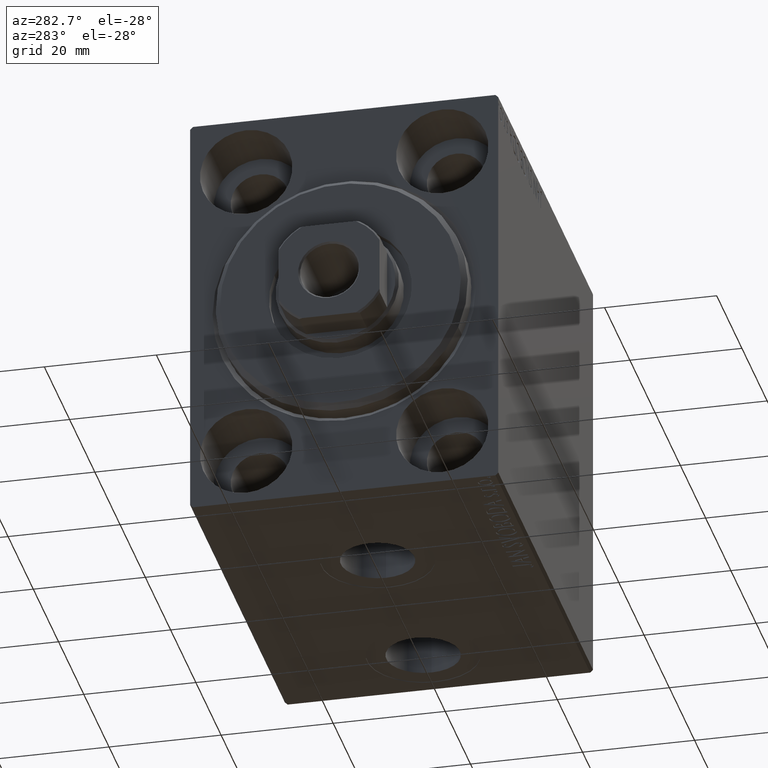
[diagram: clean part render]
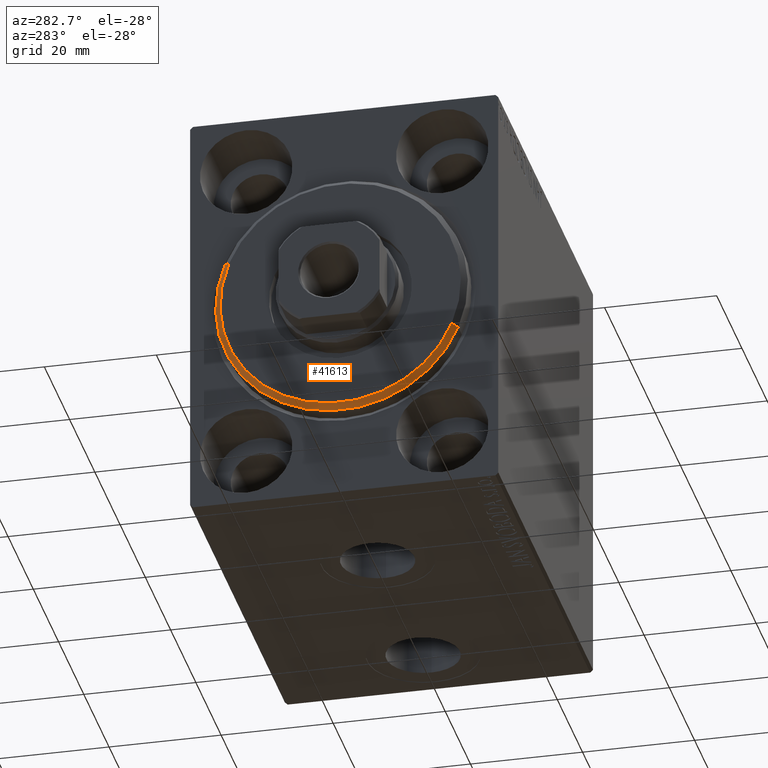
[diagram: same view with one face highlighted and labeled with its STEP entity id]
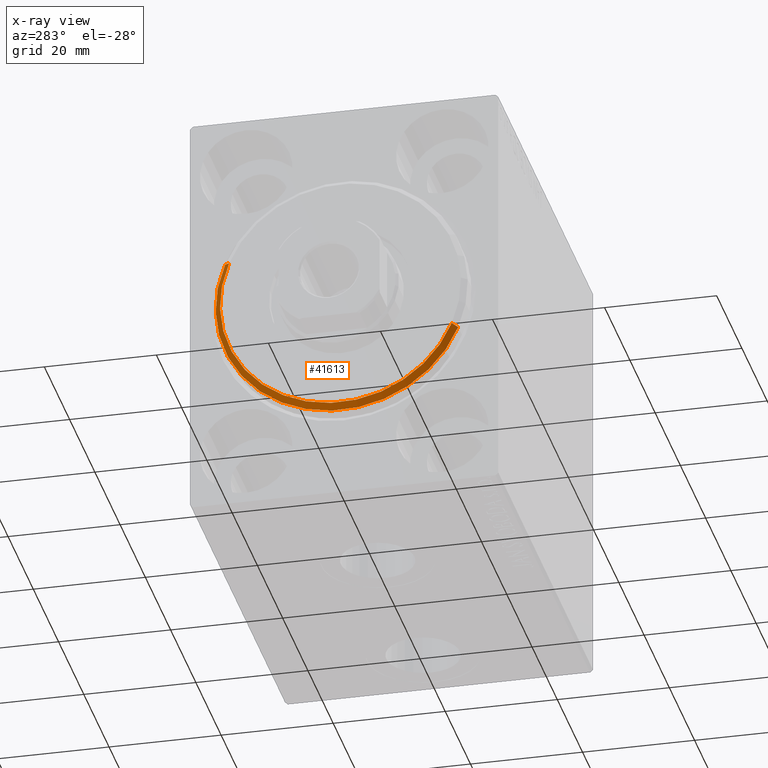
[diagram: x-ray of the same camera — body ghosted, the highlighted face saturated]
A machine part, auxiliary view. The second image highlights one B-rep face of the part: STEP entity #41613.
The next image is the same camera in x-ray: the body ghosted, the highlighted face saturated — about 0% of this face is hidden behind the body in this view.
In plain terms, the highlighted conical surface has half-angle 45 deg.
Its self-contained STEP definition (entity closure, byte-faithful):
#64 = VERTEX_POINT ( 'NONE', #10010 ) ;
#1063 = CARTESIAN_POINT ( 'NONE',  ( 3.000000000000000000, 0.000000000000000000, 0.000000000000000000 ) ) ;
#3951 = CARTESIAN_POINT ( 'NONE',  ( 3.000000000000000000, 0.000000000000000000, 0.000000000000000000 ) ) ;
#4817 = DIRECTION ( 'NONE',  ( 0.000000000000000000, 0.000000000000000000, -1.000000000000000000 ) ) ;
#5711 = EDGE_CURVE ( 'NONE', #25039, #6111, #20109, .T. ) ;
#6111 = VERTEX_POINT ( 'NONE', #41275 ) ;
#6980 = VECTOR ( 'NONE', #13031, 1000.000000000000000 ) ;
#7714 = DIRECTION ( 'NONE',  ( 1.000000000000000000, -0.000000000000000000, 0.000000000000000000 ) ) ;
#8158 = DIRECTION ( 'NONE',  ( -1.000000000000000000, 0.000000000000000000, 0.000000000000000000 ) ) ;
#10010 = CARTESIAN_POINT ( 'NONE',  ( 1.999999999999999112, 0.000000000000000000, 22.50000000000000355 ) ) ;
#10364 = AXIS2_PLACEMENT_3D ( 'NONE', #17518, #35298, #4817 ) ;
#11297 = AXIS2_PLACEMENT_3D ( 'NONE', #1063, #8158, #28197 ) ;
#13031 = DIRECTION ( 'NONE',  ( -0.7071067811865487940, 8.659560562354919300E-17, -0.7071067811865463515 ) ) ;
#13823 = ORIENTED_EDGE ( 'NONE', *, *, #14209, .F. ) ;
#14209 = EDGE_CURVE ( 'NONE', #64, #22826, #28137, .T. ) ;
#17518 = CARTESIAN_POINT ( 'NONE',  ( 1.999999999999999112, 0.000000000000000000, 0.000000000000000000 ) ) ;
#17982 = AXIS2_PLACEMENT_3D ( 'NONE', #3951, #7714, #41326 ) ;
#18872 = ORIENTED_EDGE ( 'NONE', *, *, #25955, .T. ) ;
#19932 = CARTESIAN_POINT ( 'NONE',  ( 3.000000000000000000, 2.632990618166810024E-15, -21.50000000000000355 ) ) ;
#20109 = CIRCLE ( 'NONE', #17982, 21.50000000000000355 ) ;
#21305 = FACE_OUTER_BOUND ( 'NONE', #26374, .T. ) ;
#22826 = VERTEX_POINT ( 'NONE', #25393 ) ;
#23537 = CARTESIAN_POINT ( 'NONE',  ( 3.000000000000000000, 2.694222958124177598E-15, -21.50000000000000355 ) ) ;
#23978 = LINE ( 'NONE', #30215, #43071 ) ;
#25039 = VERTEX_POINT ( 'NONE', #23537 ) ;
#25393 = CARTESIAN_POINT ( 'NONE',  ( 1.999999999999999112, 2.755455298081545172E-15, -22.50000000000000355 ) ) ;
#25955 = EDGE_CURVE ( 'NONE', #25039, #22826, #29498, .T. ) ;
#26374 = EDGE_LOOP ( 'NONE', ( #36155, #18872, #13823, #28116 ) ) ;
#28116 = ORIENTED_EDGE ( 'NONE', *, *, #34155, .F. ) ;
#28137 = CIRCLE ( 'NONE', #10364, 22.50000000000000355 ) ;
#28197 = DIRECTION ( 'NONE',  ( 0.000000000000000000, 0.000000000000000000, 1.000000000000000000 ) ) ;
#29498 = LINE ( 'NONE', #19932, #6980 ) ;
#30215 = CARTESIAN_POINT ( 'NONE',  ( 3.000000000000000000, 0.000000000000000000, 21.50000000000000355 ) ) ;
#30506 = CONICAL_SURFACE ( 'NONE', #11297, 21.50000000000000355, 0.7853981633974466137 ) ;
#34155 = EDGE_CURVE ( 'NONE', #6111, #64, #23978, .T. ) ;
#35298 = DIRECTION ( 'NONE',  ( -1.000000000000000000, 0.000000000000000000, 0.000000000000000000 ) ) ;
#36155 = ORIENTED_EDGE ( 'NONE', *, *, #5711, .F. ) ;
#41275 = CARTESIAN_POINT ( 'NONE',  ( 3.000000000000000000, 0.000000000000000000, 21.50000000000000355 ) ) ;
#41326 = DIRECTION ( 'NONE',  ( 0.000000000000000000, 0.000000000000000000, -1.000000000000000000 ) ) ;
#41613 = ADVANCED_FACE ( 'NONE', ( #21305 ), #30506, .T. ) ;
#43071 = VECTOR ( 'NONE', #43781, 1000.000000000000000 ) ;
#43781 = DIRECTION ( 'NONE',  ( -0.7071067811865487940, 0.000000000000000000, 0.7071067811865463515 ) ) ;